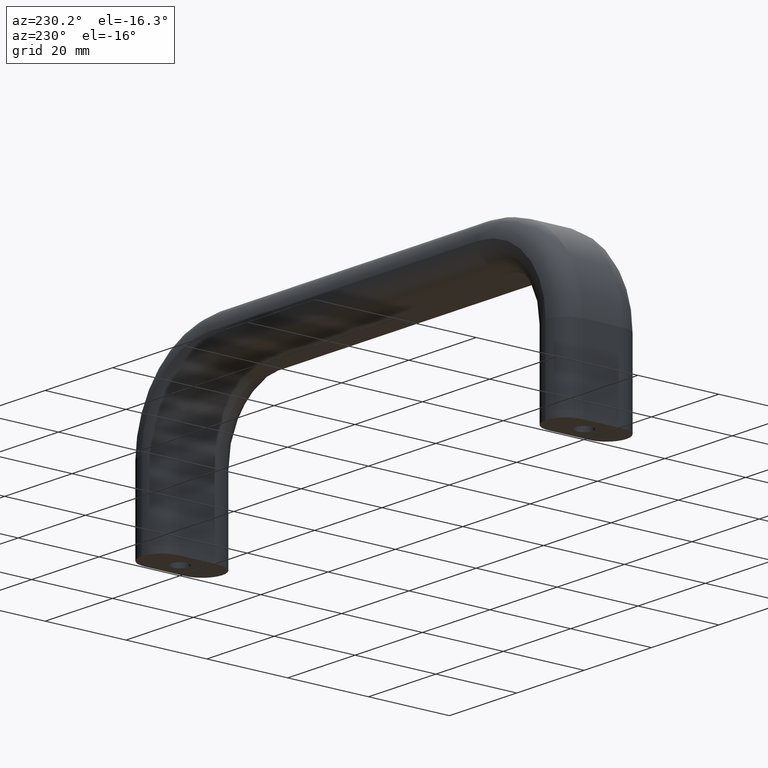
[diagram: clean part render]
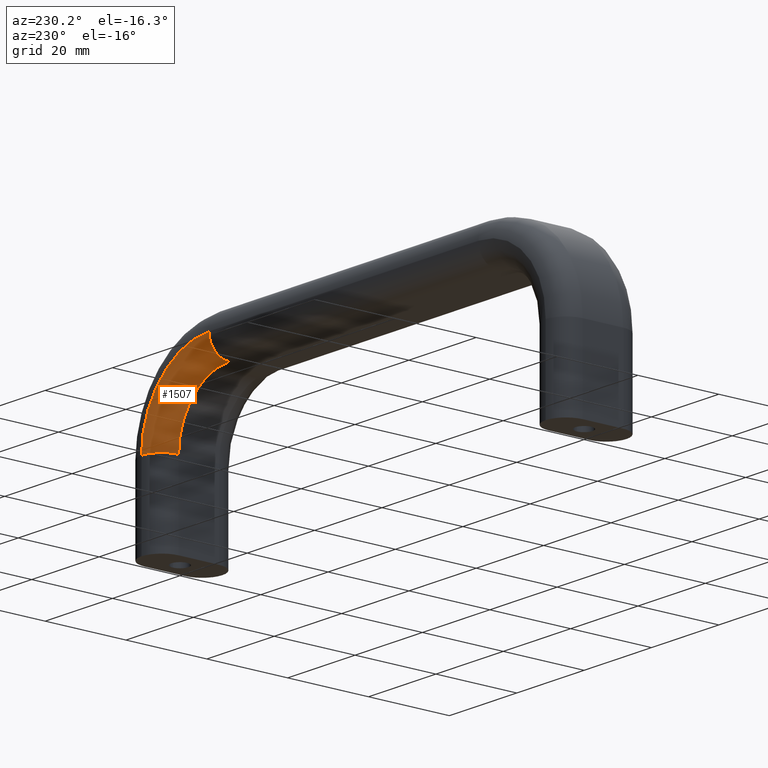
[diagram: same view with one face highlighted and labeled with its STEP entity id]
A machine part, auxiliary view. The second image highlights one B-rep face of the part: STEP entity #1507.
In plain terms, the highlighted face is a freeform B-spline surface patch.
Its self-contained STEP definition (entity closure, byte-faithful):
#87=CARTESIAN_POINT('',(115.0,4.500000000000001,20.0));
#88=VERTEX_POINT('',#87);
#89=CARTESIAN_POINT('',(120.0,9.500000000000002,20.0));
#90=VERTEX_POINT('',#89);
#91=CARTESIAN_POINT('',(120.0,4.500000000000001,20.0));
#92=DIRECTION('',(0.0,-6.123234E-017,-1.0));
#93=DIRECTION('',(-1.0,0.0,0.0));
#94=AXIS2_PLACEMENT_3D('',#91,#92,#93);
#95=CIRCLE('',#94,5.0);
#96=EDGE_CURVE('',#88,#90,#95,.T.);
#412=CARTESIAN_POINT('',(100.0,4.500000000000002,35.0));
#413=VERTEX_POINT('',#412);
#422=CARTESIAN_POINT('',(100.0,4.500000000000001,20.0));
#423=DIRECTION('',(0.0,1.0,-6.123234E-017));
#424=DIRECTION('',(1.0,0.0,0.0));
#425=AXIS2_PLACEMENT_3D('',#422,#423,#424);
#426=CIRCLE('',#425,15.0);
#427=EDGE_CURVE('',#413,#88,#426,.T.);
#1150=CARTESIAN_POINT('',(100.0,9.500000000000002,40.0));
#1151=VERTEX_POINT('',#1150);
#1152=CARTESIAN_POINT('',(100.0,9.500000000000002,20.0));
#1153=DIRECTION('',(0.0,1.0,-6.123234E-017));
#1154=DIRECTION('',(1.0,0.0,0.0));
#1155=AXIS2_PLACEMENT_3D('',#1152,#1153,#1154);
#1156=CIRCLE('',#1155,20.0);
#1157=EDGE_CURVE('',#1151,#90,#1156,.T.);
#1398=CARTESIAN_POINT('',(100.0,4.500000000000003,40.0));
#1399=DIRECTION('',(1.0,0.0,0.0));
#1400=DIRECTION('',(0.0,-6.123234E-017,-1.0));
#1401=AXIS2_PLACEMENT_3D('',#1398,#1399,#1400);
#1402=CIRCLE('',#1401,5.0);
#1403=EDGE_CURVE('',#413,#1151,#1402,.T.);
#1409=CARTESIAN_POINT('',(100.0,4.500000000000002,35.0));
#1410=CARTESIAN_POINT('',(100.0,5.150301073387096,35.0));
#1411=CARTESIAN_POINT('',(99.999999999999972,6.465139086716377,35.260193880578882));
#1412=CARTESIAN_POINT('',(100.000000000000010,8.127064557364738,36.372935442635267));
#1413=CARTESIAN_POINT('',(99.999999999999972,9.239806119421107,38.034860913283623));
#1414=CARTESIAN_POINT('',(100.0,9.500000000000004,39.349698926612902));
#1415=CARTESIAN_POINT('',(100.0,9.500000000000004,40.0));
#1416=CARTESIAN_POINT('',(100.980171403295600,4.500000000000002,34.999999999999993));
#1417=CARTESIAN_POINT('',(100.980171403295600,5.150301073387096,34.999999999999993));
#1418=CARTESIAN_POINT('',(100.997173710032640,6.465139086716378,35.260193880578896));
#1419=CARTESIAN_POINT('',(101.069885540591760,8.127064557364742,36.372935442635288));
#1420=CARTESIAN_POINT('',(101.178483661974250,9.239806119421107,38.034860913283559));
#1421=CARTESIAN_POINT('',(101.264401436683040,9.500000000000004,39.349698926612902));
#1422=CARTESIAN_POINT('',(101.306895204394140,9.500000000000004,39.999999999999986));
#1423=CARTESIAN_POINT('',(102.456318732202290,4.500000000000003,34.854590531056417));
#1424=CARTESIAN_POINT('',(102.456318732202290,5.150301073387096,34.854590531056417));
#1425=CARTESIAN_POINT('',(102.498926672393650,6.465139086716379,35.112262101368827));
#1426=CARTESIAN_POINT('',(102.681143201925610,8.127064557364745,36.214216786117873));
#1427=CARTESIAN_POINT('',(102.953291112930710,9.239806119421107,37.860031610092165));
#1428=CARTESIAN_POINT('',(103.168601862394250,9.500000000000005,39.162123630270457));
#1429=CARTESIAN_POINT('',(103.275091642936360,9.500000000000005,39.806120708075234));
#1430=CARTESIAN_POINT('',(104.361180267527250,4.500000000000002,34.377129312951155));
#1431=CARTESIAN_POINT('',(104.361180267527250,5.150301073387096,34.377129312951155));
#1432=CARTESIAN_POINT('',(104.436830428708050,6.465139086716376,34.626518717452555));
#1433=CARTESIAN_POINT('',(104.760354864927900,8.127064557364735,35.693054006091224));
#1434=CARTESIAN_POINT('',(105.243551969507390,9.239806119421107,37.285968499424463));
#1435=CARTESIAN_POINT('',(105.625835009422490,9.500000000000004,38.546208242305717));
#1436=CARTESIAN_POINT('',(105.814907023369670,9.500000000000004,39.169505750601530));
#1437=CARTESIAN_POINT('',(106.210794227283900,4.500000000000000,33.715584814101518));
#1438=CARTESIAN_POINT('',(106.210794227283900,5.150301073387095,33.715584814101518));
#1439=CARTESIAN_POINT('',(106.318528270715480,6.465139086716378,33.953498896580861));
#1440=CARTESIAN_POINT('',(106.779262195387390,8.127064557364745,34.970958981284852));
#1441=CARTESIAN_POINT('',(107.467387336672640,9.239806119421106,36.490577631111066));
#1442=CARTESIAN_POINT('',(108.011799892872590,9.500000000000000,37.692829117019244));
#1443=CARTESIAN_POINT('',(108.281058969711860,9.500000000000000,38.287446418802034));
#1444=CARTESIAN_POINT('',(108.387584936209880,4.500000000000001,32.552364390988309));
#1445=CARTESIAN_POINT('',(108.387584936209880,5.150301073387095,32.552364390988309));
#1446=CARTESIAN_POINT('',(108.533078154425680,6.465139086716373,32.770100951077069));
#1447=CARTESIAN_POINT('',(109.155292445345620,8.127064557364731,33.701270121739029));
#1448=CARTESIAN_POINT('',(110.084595181526500,9.239806119421104,35.092009728288524));
#1449=CARTESIAN_POINT('',(110.819816215803630,9.500000000000004,36.192298118850701));
#1450=CARTESIAN_POINT('',(111.183446581613130,9.500000000000004,36.736485854651079));
#1451=CARTESIAN_POINT('',(110.674915244897760,4.500000000000002,30.674915244897768));
#1452=CARTESIAN_POINT('',(110.674915244897760,5.150301073387096,30.674915244897768));
#1453=CARTESIAN_POINT('',(110.860085086392500,6.465139086716377,30.860085086392480));
#1454=CARTESIAN_POINT('',(111.651979877354260,8.127064557364738,31.651979877354293));
#1455=CARTESIAN_POINT('',(112.834707446854820,9.239806119421104,32.834707446854814));
#1456=CARTESIAN_POINT('',(113.770426403725470,9.500000000000000,33.770426403725473));
#1457=CARTESIAN_POINT('',(114.233220326530390,9.500000000000000,34.233220326530358));
#1458=CARTESIAN_POINT('',(112.552364390988360,4.500000000000003,28.387584936209880));
#1459=CARTESIAN_POINT('',(112.552364390988360,5.150301073387098,28.387584936209880));
#1460=CARTESIAN_POINT('',(112.770100951077070,6.465139086716381,28.533078154425702));
#1461=CARTESIAN_POINT('',(113.701270121739100,8.127064557364742,29.155292445345630));
#1462=CARTESIAN_POINT('',(115.092009728288530,9.239806119421109,30.084595181526531));
#1463=CARTESIAN_POINT('',(116.192298118850740,9.500000000000004,30.819816215803652));
#1464=CARTESIAN_POINT('',(116.736485854651080,9.500000000000004,31.183446581613168));
#1465=CARTESIAN_POINT('',(113.715584814101460,4.500000000000000,26.210794227283913));
#1466=CARTESIAN_POINT('',(113.715584814101460,5.150301073387095,26.210794227283913));
#1467=CARTESIAN_POINT('',(113.953498896580810,6.465139086716375,26.318528270715525));
#1468=CARTESIAN_POINT('',(114.970958981284850,8.127064557364745,26.779262195387410));
#1469=CARTESIAN_POINT('',(116.490577631111090,9.239806119421107,27.467387336672676));
#1470=CARTESIAN_POINT('',(117.692829117019220,9.499999999999998,28.011799892872610));
#1471=CARTESIAN_POINT('',(118.287446418802050,9.499999999999998,28.281058969711879));
#1472=CARTESIAN_POINT('',(114.377129312951200,4.500000000000002,24.361180267527267));
#1473=CARTESIAN_POINT('',(114.377129312951200,5.150301073387095,24.361180267527267));
#1474=CARTESIAN_POINT('',(114.626518717452600,6.465139086716377,24.436830428708056));
#1475=CARTESIAN_POINT('',(115.693054006091270,8.127064557364733,24.760354864927912));
#1476=CARTESIAN_POINT('',(117.285968499424470,9.239806119421106,25.243551969507422));
#1477=CARTESIAN_POINT('',(118.546208242305750,9.500000000000004,25.625835009422516));
#1478=CARTESIAN_POINT('',(119.169505750601540,9.500000000000004,25.814907023369692));
#1479=CARTESIAN_POINT('',(114.854590531056370,4.500000000000000,22.456318732202270));
#1480=CARTESIAN_POINT('',(114.854590531056370,5.150301073387095,22.456318732202270));
#1481=CARTESIAN_POINT('',(115.112262101368800,6.465139086716377,22.498926672393626));
#1482=CARTESIAN_POINT('',(116.214216786117860,8.127064557364742,22.681143201925586));
#1483=CARTESIAN_POINT('',(117.860031610092140,9.239806119421107,22.953291112930735));
#1484=CARTESIAN_POINT('',(119.162123630270440,9.500000000000000,23.168601862394237));
#1485=CARTESIAN_POINT('',(119.806120708075240,9.500000000000000,23.275091642936367));
#1486=CARTESIAN_POINT('',(115.000000000000040,4.500000000000001,20.980171403295607));
#1487=CARTESIAN_POINT('',(115.000000000000040,5.150301073387095,20.980171403295607));
#1488=CARTESIAN_POINT('',(115.260193880578880,6.465139086716377,20.997173710032666));
#1489=CARTESIAN_POINT('',(116.372935442635240,8.127064557364738,21.069885540591748));
#1490=CARTESIAN_POINT('',(118.034860913283610,9.239806119421109,21.178483661974283));
#1491=CARTESIAN_POINT('',(119.349698926612920,9.500000000000002,21.264401436683045));
#1492=CARTESIAN_POINT('',(119.999999999999960,9.500000000000002,21.306895204394142));
#1493=CARTESIAN_POINT('',(115.0,4.500000000000001,20.0));
#1494=CARTESIAN_POINT('',(115.0,5.150301073387095,20.0));
#1495=CARTESIAN_POINT('',(115.260193880578870,6.465139086716376,19.999999999999996));
#1496=CARTESIAN_POINT('',(116.372935442635270,8.127064557364736,20.000000000000004));
#1497=CARTESIAN_POINT('',(118.034860913283610,9.239806119421107,19.999999999999996));
#1498=CARTESIAN_POINT('',(119.349698926612900,9.500000000000002,20.0));
#1499=CARTESIAN_POINT('',(120.0,9.500000000000002,20.0));
#1500=B_SPLINE_SURFACE_WITH_KNOTS('',3,3,((#1409,#1416,#1423,#1430,#1437,#1444,#1451,#1458,#1465,#1472,#1479,#1486,#1493),(#1410,#1417,#1424,#1431,#1438,#1445,#1452,#1459,#1466,#1473,#1480,#1487,#1494),(#1411,#1418,#1425,#1432,#1439,#1446,#1453,#1460,#1467,#1474,#1481,#1488,#1495),(#1412,#1419,#1426,#1433,#1440,#1447,#1454,#1461,#1468,#1475,#1482,#1489,#1496),(#1413,#1420,#1427,#1434,#1441,#1448,#1455,#1462,#1469,#1476,#1483,#1490,#1497),(#1414,#1421,#1428,#1435,#1442,#1449,#1456,#1463,#1470,#1477,#1484,#1491,#1498),(#1415,#1422,#1429,#1436,#1443,#1450,#1457,#1464,#1471,#1478,#1485,#1492,#1499)),.UNSPECIFIED.,.F.,.F.,.U.,(4,1,1,1,4),(4,1,1,1,1,1,1,1,1,1,4),(0.0,1.950903220161283,3.901806440322567,5.852709660483850,7.803612880645133),(0.0,3.329903032368819,4.996862474205124,6.663821916041433,9.993724948410257,13.323627980779074,16.653531013147898,19.983434045516720,21.650393487353025,23.317352929189330,26.647255961558152),.UNSPECIFIED.);
#1501=ORIENTED_EDGE('',*,*,#1403,.T.);
#1502=ORIENTED_EDGE('',*,*,#1157,.T.);
#1503=ORIENTED_EDGE('',*,*,#96,.F.);
#1504=ORIENTED_EDGE('',*,*,#427,.F.);
#1505=EDGE_LOOP('',(#1501,#1502,#1503,#1504));
#1506=FACE_OUTER_BOUND('',#1505,.T.);
#1507=ADVANCED_FACE('',(#1506),#1500,.T.);